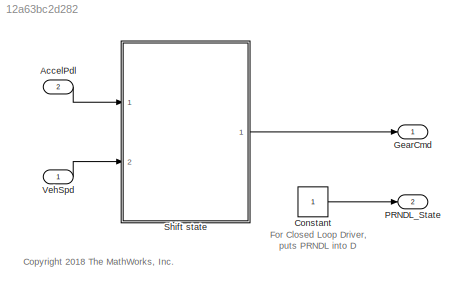
MODEL slx_12a63bc2d282
KIND model
CONFIG AbsTol = auto
CONFIG EnableMultiTasking = on
CONFIG FixedStep = 0.01
CONFIG MaxStep = auto
CONFIG MinStep = auto
CONFIG RelTol = 1e-3
CONFIG SampleTimeConstraint = Unconstrained
CONFIG Solver = FixedStepDiscrete
CONFIG SolverName = FixedStepDiscrete
CONFIG StartTime = 0.0
CONFIG StopTime = inf
BLOCK [Inport] AccelPdl
  Port = 2
  SamplingMode = Sample based
BLOCK [Constant] Constant
  SampleTime = 0.01
BLOCK [Outport] GearCmd
  VectorParamsAs1DForOutWhenUnconnected = off
BLOCK [Outport] PRNDL_State
  Port = 2
  VectorParamsAs1DForOutWhenUnconnected = off
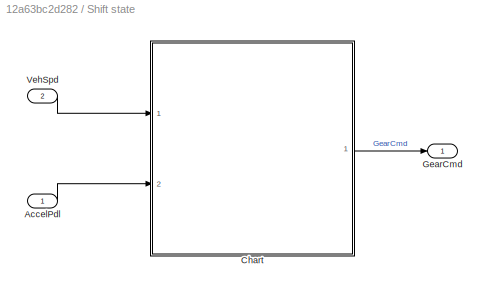
BLOCK [SubSystem] Shift state
  Ports = [2, 1]
  RequestExecContextInheritance = off
BLOCK [Inport] Shift state/AccelPdl
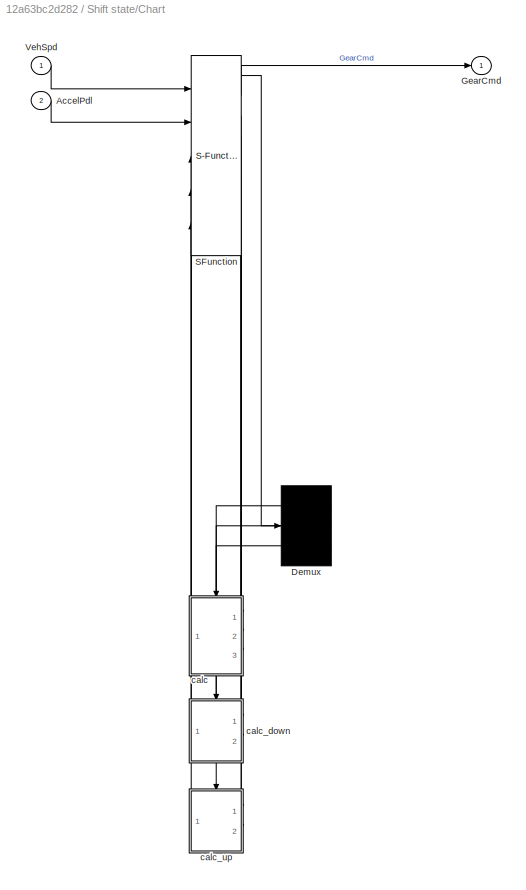
BLOCK [SubSystem] Shift state/Chart
  ErrorFcn = Stateflow.Translate.translate
  PermitHierarchicalResolution = ExplicitOnly
  Ports = [2, 1]
  RequestExecContextInheritance = off
  SFBlockType = Chart
  TreatAsAtomicUnit = on
BLOCK [Demux] Shift state/Chart/ Demux 
  Outputs = 3
  Ports = [1, 3]
BLOCK [S-Function] Shift state/Chart/ SFunction 
  EnableBusSupport = off
  FunctionName = sf_sfun
  PortCounts = [5 9]
  Ports = [5, 9]
  SFcnIsStateOwnerBlock = off
  SFunctionDeploymentMode = off
  Tag = Stateflow S-Function 1
BLOCK [Inport] Shift state/Chart/AccelPdl
  Port = 2
BLOCK [Outport] Shift state/Chart/GearCmd
  VectorParamsAs1DForOutWhenUnconnected = off
BLOCK [Inport] Shift state/Chart/VehSpd
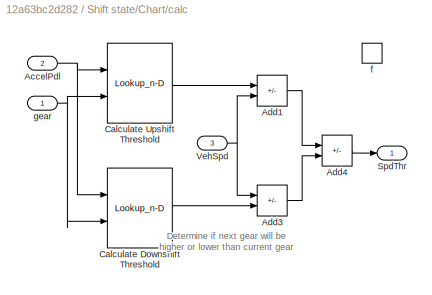
BLOCK [SubSystem] Shift state/Chart/calc
  Ports = [3, 1, 0, 1]
  PreDeleteFcn = Stateflow.SLINSF.SimulinkMan.removePreDeleteFcn
  RequestExecContextInheritance = off
  UndoDeleteFcn = Stateflow.SLINSF.SimulinkMan.restorePreDeleteFcn
BLOCK [Inport] Shift state/Chart/calc/AccelPdl
  Port = 2
BLOCK [Sum] Shift state/Chart/calc/Add1
  IconShape = rectangular
  Inputs = +-
  Ports = [2, 1]
BLOCK [Sum] Shift state/Chart/calc/Add3
  IconShape = rectangular
  Inputs = +-
  Ports = [2, 1]
BLOCK [Sum] Shift state/Chart/calc/Add4
  IconShape = rectangular
  Inputs = +-
  Ports = [2, 1]
BLOCK [Lookup_n-D] Shift state/Chart/calc/Calculate Downshift Threshold
  BreakpointsForDimension1 = Pdl_Pos_Dn_bpt
  BreakpointsForDimension2 = Gear_Dn_bpt
  ExtrapMethod = Clip
  InternalRulePriority = Speed
  Ports = [2, 1]
  RndMeth = Simplest
  Table = Dn_Shft_Spd
  UseLastTableValue = on
BLOCK [Lookup_n-D] Shift state/Chart/calc/Calculate Upshift Threshold
  BreakpointsForDimension1 = Pdl_Pos_Up_bpt
  BreakpointsForDimension2 = Gear_Up_bpt
  ExtrapMethod = Clip
  InternalRulePriority = Speed
  Ports = [2, 1]
  RndMeth = Simplest
  Table = Up_Shft_Spd
  UseLastTableValue = on
BLOCK [Outport] Shift state/Chart/calc/SpdThr
  VectorParamsAs1DForOutWhenUnconnected = off
BLOCK [Inport] Shift state/Chart/calc/VehSpd
  Port = 3
BLOCK [TriggerPort] Shift state/Chart/calc/f
  CopyFcn = Stateflow.SLINSF.SimulinkMan.removeBlockPreDeleteFcn
  Ports = []
  PreDeleteFcn = Stateflow.SLINSF.SimulinkMan.unsafePredeleteFcn
  StatesWhenEnabling = reset
  TriggerType = function-call
  VariantControl = Variant
BLOCK [Inport] Shift state/Chart/calc/gear
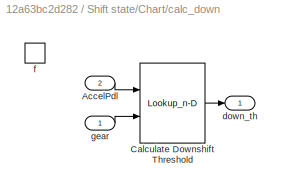
BLOCK [SubSystem] Shift state/Chart/calc_down
  Ports = [2, 1, 0, 1]
  PreDeleteFcn = Stateflow.SLINSF.SimulinkMan.removePreDeleteFcn
  RequestExecContextInheritance = off
  UndoDeleteFcn = Stateflow.SLINSF.SimulinkMan.restorePreDeleteFcn
BLOCK [Inport] Shift state/Chart/calc_down/AccelPdl
  Port = 2
BLOCK [Lookup_n-D] Shift state/Chart/calc_down/Calculate Downshift Threshold
  BreakpointsForDimension1 = Pdl_Pos_Dn_bpt
  BreakpointsForDimension2 = Gear_Dn_bpt
  ExtrapMethod = Clip
  InternalRulePriority = Speed
  Ports = [2, 1]
  RndMeth = Simplest
  Table = Dn_Shft_Spd
  UseLastTableValue = on
BLOCK [Outport] Shift state/Chart/calc_down/down_th
  VectorParamsAs1DForOutWhenUnconnected = off
BLOCK [TriggerPort] Shift state/Chart/calc_down/f
  CopyFcn = Stateflow.SLINSF.SimulinkMan.removeBlockPreDeleteFcn
  Ports = []
  PreDeleteFcn = Stateflow.SLINSF.SimulinkMan.unsafePredeleteFcn
  StatesWhenEnabling = reset
  TriggerType = function-call
  VariantControl = Variant
BLOCK [Inport] Shift state/Chart/calc_down/gear
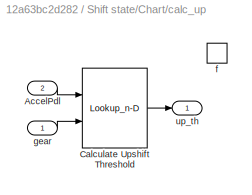
BLOCK [SubSystem] Shift state/Chart/calc_up
  Ports = [2, 1, 0, 1]
  PreDeleteFcn = Stateflow.SLINSF.SimulinkMan.removePreDeleteFcn
  RequestExecContextInheritance = off
  UndoDeleteFcn = Stateflow.SLINSF.SimulinkMan.restorePreDeleteFcn
BLOCK [Inport] Shift state/Chart/calc_up/AccelPdl
  Port = 2
BLOCK [Lookup_n-D] Shift state/Chart/calc_up/Calculate Upshift Threshold
  BreakpointsForDimension1 = Pdl_Pos_Up_bpt
  BreakpointsForDimension2 = Gear_Up_bpt
  ExtrapMethod = Clip
  InternalRulePriority = Speed
  Ports = [2, 1]
  RndMeth = Simplest
  Table = Up_Shft_Spd
  UseLastTableValue = on
BLOCK [TriggerPort] Shift state/Chart/calc_up/f
  CopyFcn = Stateflow.SLINSF.SimulinkMan.removeBlockPreDeleteFcn
  Ports = []
  PreDeleteFcn = Stateflow.SLINSF.SimulinkMan.unsafePredeleteFcn
  StatesWhenEnabling = reset
  TriggerType = function-call
  VariantControl = Variant
BLOCK [Inport] Shift state/Chart/calc_up/gear
BLOCK [Outport] Shift state/Chart/calc_up/up_th
  VectorParamsAs1DForOutWhenUnconnected = off
BLOCK [Outport] Shift state/GearCmd
  VectorParamsAs1DForOutWhenUnconnected = off
BLOCK [Inport] Shift state/VehSpd
  Port = 2
BLOCK [Inport] VehSpd
  SamplingMode = Sample based
ANNOTATION (root): <copyright redacted>
ANNOTATION (root): For Closed Loop Driver, puts PRNDL into D
ANNOTATION Shift state/Chart/calc: Determine if next gear will be higher or lower than current gear
LINE AccelPdl:1 -> Shift state:1
LINE Constant:1 -> PRNDL_State:1
LINE Shift state/AccelPdl:1 -> Shift state/Chart:2
LINE Shift state/Chart:1 -> Shift state/GearCmd:1
LINE Shift state/VehSpd:1 -> Shift state/Chart:1
LINE Shift state:1 -> GearCmd:1
LINE VehSpd:1 -> Shift state:2
CHART Shift state/Chart states=16 transitions=25
  STATE_LABEL 'GearCmd'
  STATE_LABEL 'G1\nen: \n  GearCmd = 1;\n'
  STATE_LABEL 'G2\nen: \n  GearCmd = 2;\ndu:\n  [SpdThr] = calc(2,AccelPdl,VehSpd);'
  STATE_LABEL 'G3\nen: \n  GearCmd = 3;\ndu:\n  [SpdThr] = calc(3,AccelPdl,VehSpd);'
  STATE_LABEL 'G6\nen:\n  GearCmd = 6;\n'
  STATE_LABEL 'G5\nen:\n  GearCmd = 5;\ndu:\n  [SpdThr] = calc(5,AccelPdl,VehSpd);'
  STATE_LABEL 'G4\nen:\n  GearCmd = 4;\ndu:\n  [SpdThr] = calc(4,AccelPdl,VehSpd);'
  STATE_LABEL 'Up'
  STATE_LABEL 'Up'
  STATE_LABEL 'Down'
  STATE_LABEL 'Down'
  STATE_LABEL 'Up'
  STATE_LABEL 'Down'
  STATE_LABEL 'Up'
  STATE_LABEL 'Up'
  STATE_LABEL 'Down'
  STATE_LABEL 'Down'
  STATE_LABEL 'G1\nen: \n  GearCmd = 1;\n'
  STATE_LABEL 'G2\nen: \n  GearCmd = 2;\ndu:\n  [SpdThr] = calc(2,AccelPdl,VehSpd);'
  STATE_LABEL 'G3\nen: \n  GearCmd = 3;\ndu:\n  [SpdThr] = calc(3,AccelPdl,VehSpd);'
  STATE_LABEL 'G6\nen:\n  GearCmd = 6;\n'
  STATE_LABEL 'G5\nen:\n  GearCmd = 5;\ndu:\n  [SpdThr] = calc(5,AccelPdl,VehSpd);'
  STATE_LABEL 'G4\nen:\n  GearCmd = 4;\ndu:\n  [SpdThr] = calc(4,AccelPdl,VehSpd);'
  STATE_LABEL 'SelectionState\ndu:[up_th]=calc_up(GearCmd,AccelPdl);\ndu:[down_th]=calc_down(GearCmd,AccelPdl);'
  STATE_LABEL 'SteadyState\nen:\n  clutchControl = 0;'
  STATE_LABEL 'preDownShifting'
  STATE_LABEL 'preUpShifting'
  STATE_LABEL 'DownShifting\nen: \n  GearCmd = GearCmd - 0.5;\n'
  STATE_LABEL 'UpShifting\nen: \n  GearCmd = GearCmd + 0.5;\n'
  STATE_LABEL '[VehSpd < down_th && ...\nGearCmd > 1]'
  STATE_LABEL '[VehSpd > up_th &&...\nGearCmd <= 5 && ...\nfloor(GearCmd) == GearCmd]'
  STATE_LABEL '[VehSpd >= down_th]'
  STATE_LABEL '[VehSpd <= up_th]'
  STATE_LABEL 'after(0.5, sec)\n[VehSpd < down_th]'
  STATE_LABEL 'after(0.5,sec)\n[VehSpd > up_th]'
  STATE_LABEL '{GearCmd.Down;}'
  STATE_LABEL '{GearCmd.Up;}'
  STATE_LABEL 'SteadyState\nen:\n  clutchControl = 0;'
  STATE_LABEL 'preDownShifting'
  STATE_LABEL 'preUpShifting'
CHART  states=0 transitions=0
